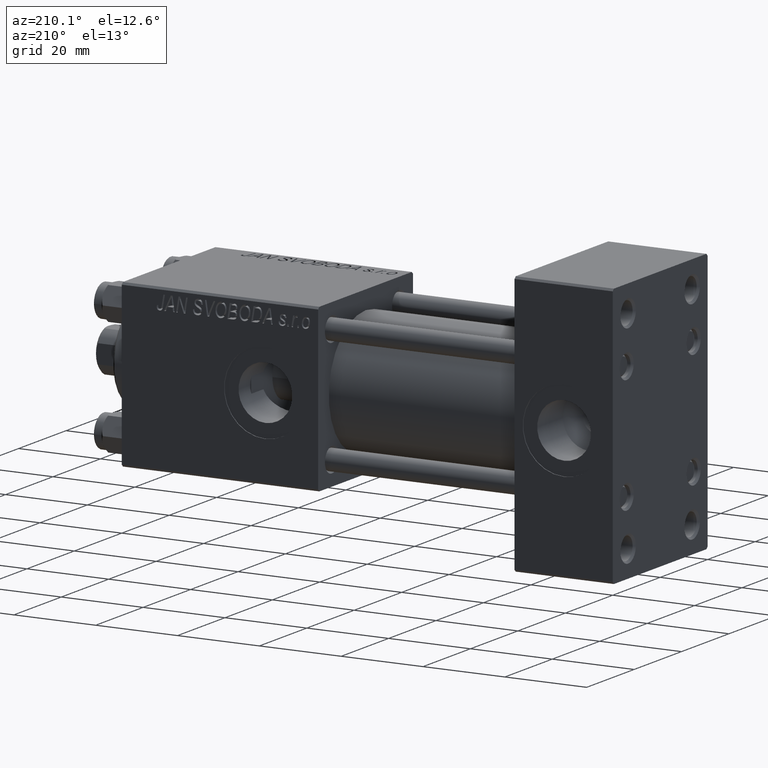
[diagram: clean part render]
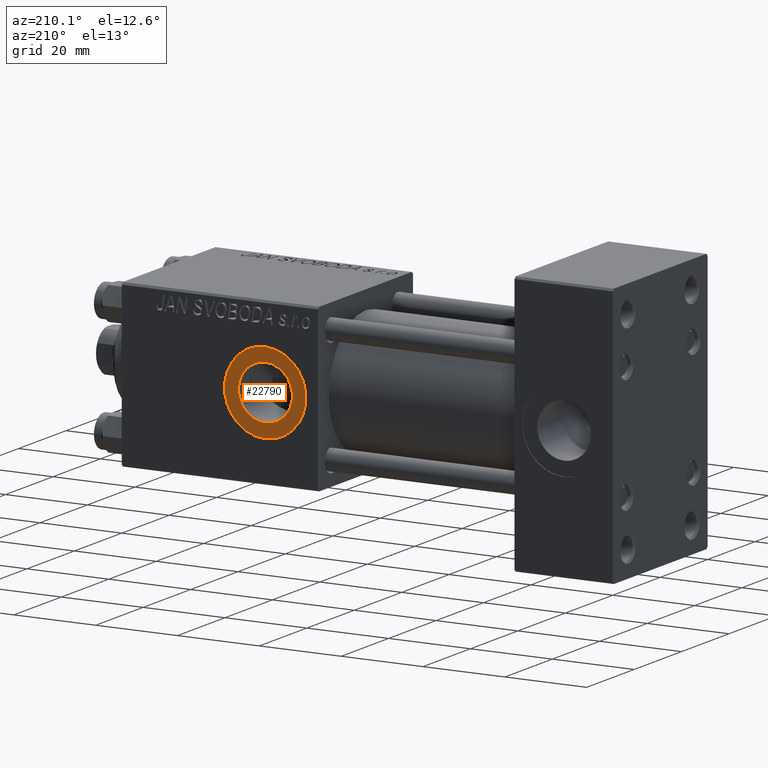
[diagram: same view with one face highlighted and labeled with its STEP entity id]
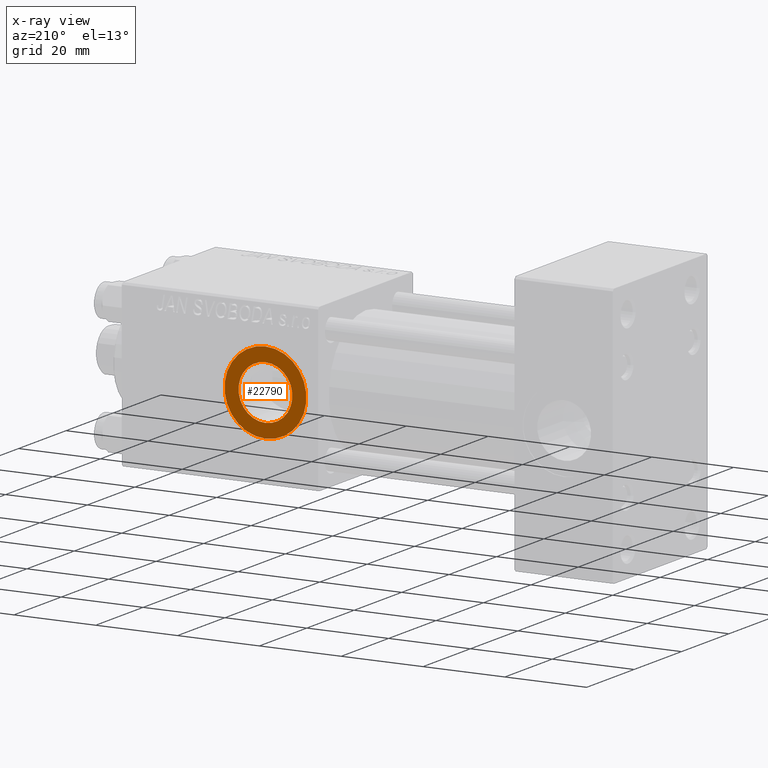
[diagram: x-ray of the same camera — body ghosted, the highlighted face saturated]
A machine part, auxiliary view. The second image highlights one B-rep face of the part: STEP entity #22790.
The next image is the same camera in x-ray: the body ghosted, the highlighted face saturated — about 0% of this face is hidden behind the body in this view.
In plain terms, the highlighted planar face has unit normal (0, 1, 0).
Its self-contained STEP definition (entity closure, byte-faithful):
#1132 = FACE_OUTER_BOUND ( 'NONE', #34344, .T. ) ;
#1714 = AXIS2_PLACEMENT_3D ( 'NONE', #2293, #9595, #8846 ) ;
#2293 = CARTESIAN_POINT ( 'NONE',  ( 85.00000000000000000, 19.79999999999999716, 0.000000000000000000 ) ) ;
#2571 = CARTESIAN_POINT ( 'NONE',  ( 85.00000000000000000, 19.79999999999999716, 0.000000000000000000 ) ) ;
#3001 = CIRCLE ( 'NONE', #3820, 9.999999999999994671 ) ;
#3292 = EDGE_CURVE ( 'NONE', #41541, #29926, #25389, .T. ) ;
#3778 = AXIS2_PLACEMENT_3D ( 'NONE', #47318, #4911, #31441 ) ;
#3820 = AXIS2_PLACEMENT_3D ( 'NONE', #28243, #43648, #17343 ) ;
#4911 = DIRECTION ( 'NONE',  ( 0.000000000000000000, 1.000000000000000000, 0.000000000000000000 ) ) ;
#5186 = AXIS2_PLACEMENT_3D ( 'NONE', #2571, #33391, #17947 ) ;
#6740 = VERTEX_POINT ( 'NONE', #29065 ) ;
#7953 = VERTEX_POINT ( 'NONE', #46874 ) ;
#8846 = DIRECTION ( 'NONE',  ( 0.000000000000000000, 0.000000000000000000, 1.000000000000000000 ) ) ;
#9595 = DIRECTION ( 'NONE',  ( 0.000000000000000000, 1.000000000000000000, 0.000000000000000000 ) ) ;
#12462 = FACE_BOUND ( 'NONE', #33831, .T. ) ;
#12886 = EDGE_CURVE ( 'NONE', #6740, #7953, #3001, .T. ) ;
#15774 = CARTESIAN_POINT ( 'NONE',  ( 85.00000000000000000, 19.79999999999999716, 0.000000000000000000 ) ) ;
#17016 = CIRCLE ( 'NONE', #1714, 6.580000000000002736 ) ;
#17343 = DIRECTION ( 'NONE',  ( 0.000000000000000000, 0.000000000000000000, 1.000000000000000000 ) ) ;
#17947 = DIRECTION ( 'NONE',  ( 0.000000000000000000, 0.000000000000000000, 1.000000000000000000 ) ) ;
#20559 = PLANE ( 'NONE',  #3778 ) ;
#22790 = ADVANCED_FACE ( 'NONE', ( #12462, #1132 ), #20559, .T. ) ;
#24544 = CIRCLE ( 'NONE', #5186, 9.999999999999994671 ) ;
#25389 = CIRCLE ( 'NONE', #39917, 6.580000000000002736 ) ;
#27416 = DIRECTION ( 'NONE',  ( 0.000000000000000000, 1.000000000000000000, 0.000000000000000000 ) ) ;
#28243 = CARTESIAN_POINT ( 'NONE',  ( 85.00000000000000000, 19.79999999999999716, 0.000000000000000000 ) ) ;
#28414 = ORIENTED_EDGE ( 'NONE', *, *, #3292, .F. ) ;
#29065 = CARTESIAN_POINT ( 'NONE',  ( 85.00000000000000000, 19.79999999999999716, 9.999999999999994671 ) ) ;
#29926 = VERTEX_POINT ( 'NONE', #40746 ) ;
#30914 = ORIENTED_EDGE ( 'NONE', *, *, #42554, .F. ) ;
#31441 = DIRECTION ( 'NONE',  ( 0.000000000000000000, -0.000000000000000000, 1.000000000000000000 ) ) ;
#33391 = DIRECTION ( 'NONE',  ( 0.000000000000000000, 1.000000000000000000, 0.000000000000000000 ) ) ;
#33831 = EDGE_LOOP ( 'NONE', ( #28414, #30914 ) ) ;
#34344 = EDGE_LOOP ( 'NONE', ( #41099, #46736 ) ) ;
#39917 = AXIS2_PLACEMENT_3D ( 'NONE', #15774, #27416, #42315 ) ;
#40746 = CARTESIAN_POINT ( 'NONE',  ( 85.00000000000000000, 19.79999999999999716, -6.580000000000002736 ) ) ;
#41097 = CARTESIAN_POINT ( 'NONE',  ( 85.00000000000000000, 19.79999999999999716, 6.580000000000002736 ) ) ;
#41099 = ORIENTED_EDGE ( 'NONE', *, *, #12886, .T. ) ;
#41541 = VERTEX_POINT ( 'NONE', #41097 ) ;
#42315 = DIRECTION ( 'NONE',  ( 0.000000000000000000, 0.000000000000000000, 1.000000000000000000 ) ) ;
#42554 = EDGE_CURVE ( 'NONE', #29926, #41541, #17016, .T. ) ;
#43648 = DIRECTION ( 'NONE',  ( 0.000000000000000000, 1.000000000000000000, 0.000000000000000000 ) ) ;
#45866 = EDGE_CURVE ( 'NONE', #7953, #6740, #24544, .T. ) ;
#46736 = ORIENTED_EDGE ( 'NONE', *, *, #45866, .T. ) ;
#46874 = CARTESIAN_POINT ( 'NONE',  ( 85.00000000000000000, 19.79999999999999716, -9.999999999999994671 ) ) ;
#47318 = CARTESIAN_POINT ( 'NONE',  ( 85.00000000000000000, 19.79999999999999716, 0.000000000000000000 ) ) ;